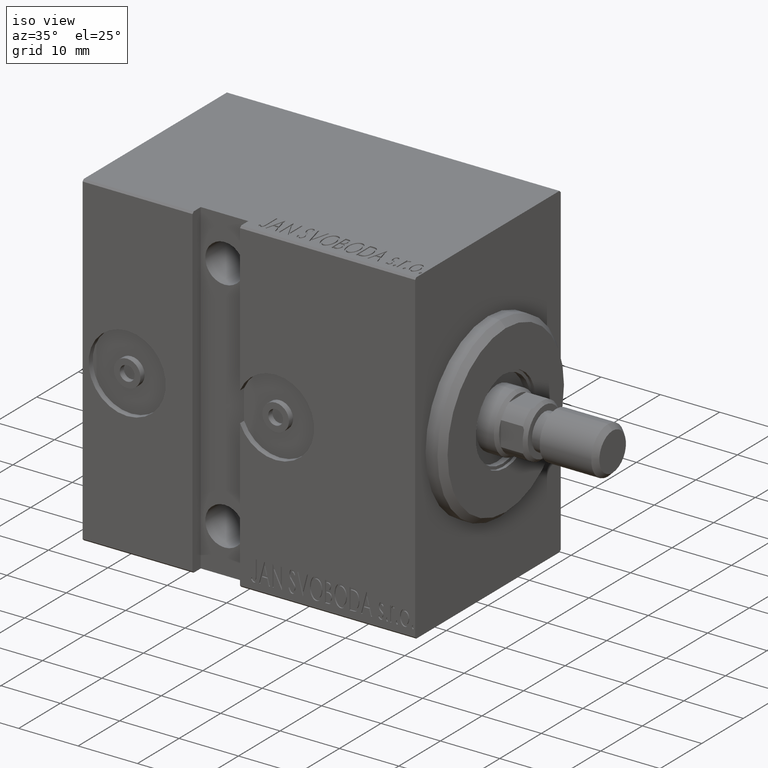
[diagram: clean part render]
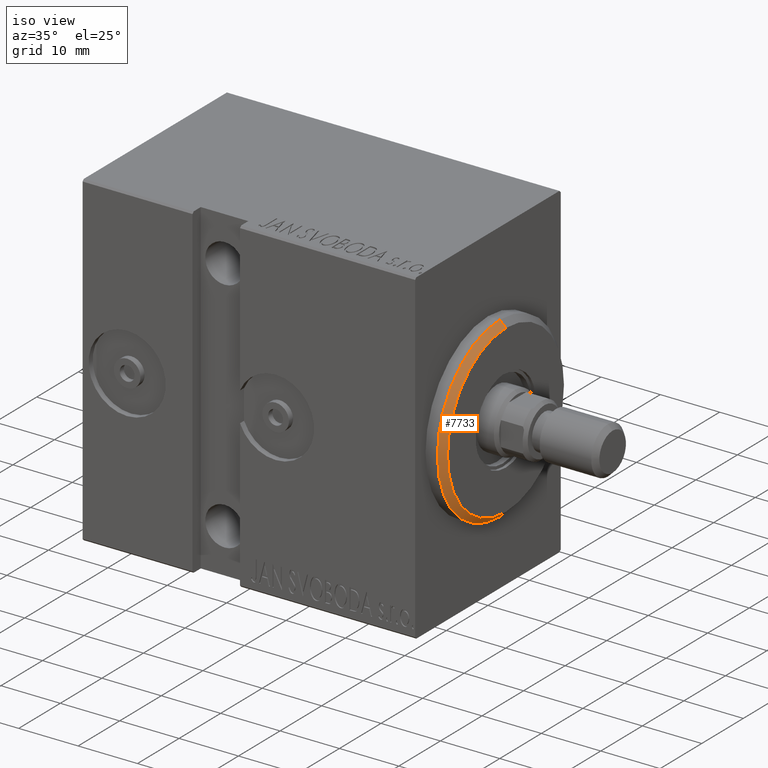
[diagram: same view with one face highlighted and labeled with its STEP entity id]
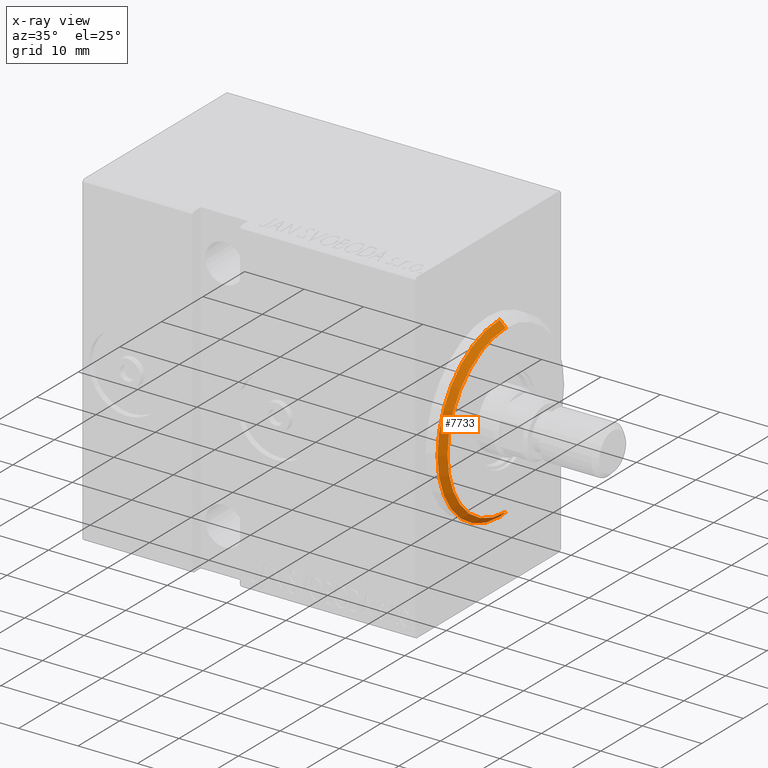
[diagram: x-ray of the same camera — body ghosted, the highlighted face saturated]
A machine part, iso view. The second image highlights one B-rep face of the part: STEP entity #7733.
The next image is the same camera in x-ray: the body ghosted, the highlighted face saturated — about 0% of this face is hidden behind the body in this view.
In plain terms, the highlighted conical surface has half-angle 45 deg.
Its self-contained STEP definition (entity closure, byte-faithful):
#414 = DIRECTION ( 'NONE',  ( 0.000000000000000000, 0.000000000000000000, -1.000000000000000000 ) ) ;
#1376 = EDGE_CURVE ( 'NONE', #22046, #4899, #41993, .T. ) ;
#2866 = CARTESIAN_POINT ( 'NONE',  ( 3.000000000000000000, 0.000000000000000000, 13.99999999999998934 ) ) ;
#4899 = VERTEX_POINT ( 'NONE', #22436 ) ;
#6794 = FACE_OUTER_BOUND ( 'NONE', #17756, .T. ) ;
#7408 = VECTOR ( 'NONE', #22633, 999.9999999999998863 ) ;
#7733 = ADVANCED_FACE ( 'NONE', ( #6794 ), #15508, .T. ) ;
#7885 = ORIENTED_EDGE ( 'NONE', *, *, #22090, .F. ) ;
#9033 = CARTESIAN_POINT ( 'NONE',  ( 3.000000000000000000, 1.714505518806293257E-15, -13.99999999999998934 ) ) ;
#9664 = EDGE_CURVE ( 'NONE', #22046, #30857, #35336, .T. ) ;
#10946 = VERTEX_POINT ( 'NONE', #23287 ) ;
#12640 = VECTOR ( 'NONE', #38416, 999.9999999999998863 ) ;
#13385 = DIRECTION ( 'NONE',  ( -1.000000000000000000, 0.000000000000000000, 0.000000000000000000 ) ) ;
#15508 = CONICAL_SURFACE ( 'NONE', #21821, 13.99999999999998934, 0.7853981633974473908 ) ;
#15652 = ORIENTED_EDGE ( 'NONE', *, *, #9664, .T. ) ;
#16452 = DIRECTION ( 'NONE',  ( 0.000000000000000000, 0.000000000000000000, 1.000000000000000000 ) ) ;
#17756 = EDGE_LOOP ( 'NONE', ( #7885, #38854, #15652, #18048 ) ) ;
#18048 = ORIENTED_EDGE ( 'NONE', *, *, #37480, .F. ) ;
#20605 = CARTESIAN_POINT ( 'NONE',  ( 1.999999999999988676, 0.000000000000000000, 0.000000000000000000 ) ) ;
#20761 = DIRECTION ( 'NONE',  ( 1.000000000000000000, -0.000000000000000000, 0.000000000000000000 ) ) ;
#21821 = AXIS2_PLACEMENT_3D ( 'NONE', #36878, #13385, #16452 ) ;
#22046 = VERTEX_POINT ( 'NONE', #2866 ) ;
#22090 = EDGE_CURVE ( 'NONE', #4899, #10946, #25716, .T. ) ;
#22436 = CARTESIAN_POINT ( 'NONE',  ( 3.000000000000000000, 1.775737858763661226E-15, -13.99999999999998934 ) ) ;
#22633 = DIRECTION ( 'NONE',  ( -0.7071067811865482389, 8.659560562354926695E-17, -0.7071067811865469066 ) ) ;
#23287 = CARTESIAN_POINT ( 'NONE',  ( 1.999999999999988676, 1.836970198721029589E-15, -15.00000000000000000 ) ) ;
#23766 = AXIS2_PLACEMENT_3D ( 'NONE', #36814, #20761, #33958 ) ;
#24335 = DIRECTION ( 'NONE',  ( -1.000000000000000000, 0.000000000000000000, 0.000000000000000000 ) ) ;
#25716 = LINE ( 'NONE', #9033, #7408 ) ;
#29168 = CARTESIAN_POINT ( 'NONE',  ( 3.000000000000000000, 0.000000000000000000, 13.99999999999998934 ) ) ;
#30138 = AXIS2_PLACEMENT_3D ( 'NONE', #20605, #24335, #414 ) ;
#30857 = VERTEX_POINT ( 'NONE', #38788 ) ;
#33958 = DIRECTION ( 'NONE',  ( 0.000000000000000000, 0.000000000000000000, -1.000000000000000000 ) ) ;
#35336 = LINE ( 'NONE', #29168, #12640 ) ;
#36467 = CIRCLE ( 'NONE', #30138, 15.00000000000000000 ) ;
#36814 = CARTESIAN_POINT ( 'NONE',  ( 3.000000000000000000, 0.000000000000000000, 0.000000000000000000 ) ) ;
#36878 = CARTESIAN_POINT ( 'NONE',  ( 3.000000000000000000, 0.000000000000000000, 0.000000000000000000 ) ) ;
#37480 = EDGE_CURVE ( 'NONE', #10946, #30857, #36467, .T. ) ;
#38416 = DIRECTION ( 'NONE',  ( -0.7071067811865482389, 0.000000000000000000, 0.7071067811865469066 ) ) ;
#38788 = CARTESIAN_POINT ( 'NONE',  ( 1.999999999999988676, 0.000000000000000000, 15.00000000000000000 ) ) ;
#38854 = ORIENTED_EDGE ( 'NONE', *, *, #1376, .F. ) ;
#41993 = CIRCLE ( 'NONE', #23766, 13.99999999999998934 ) ;